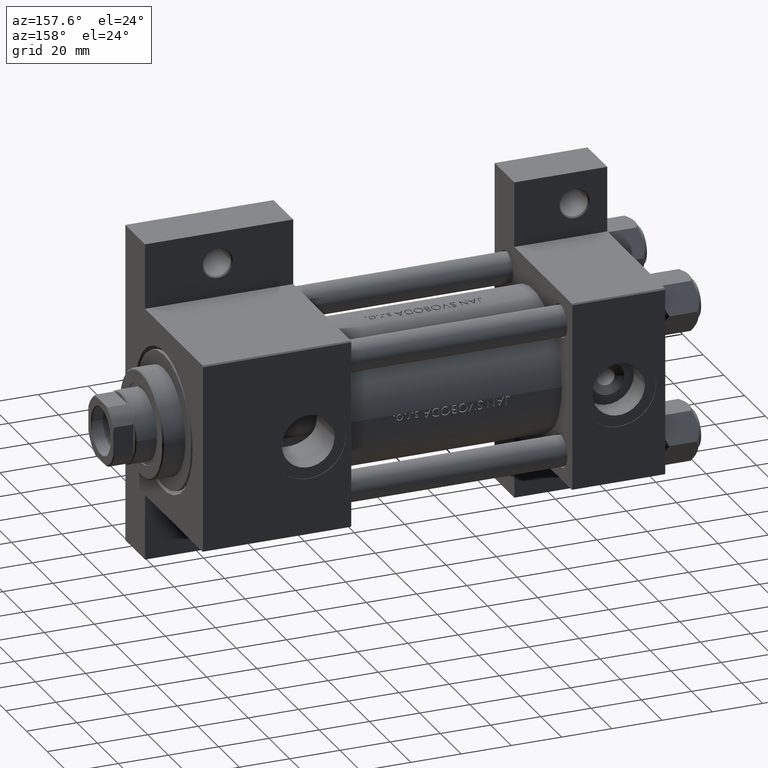
[diagram: clean part render]
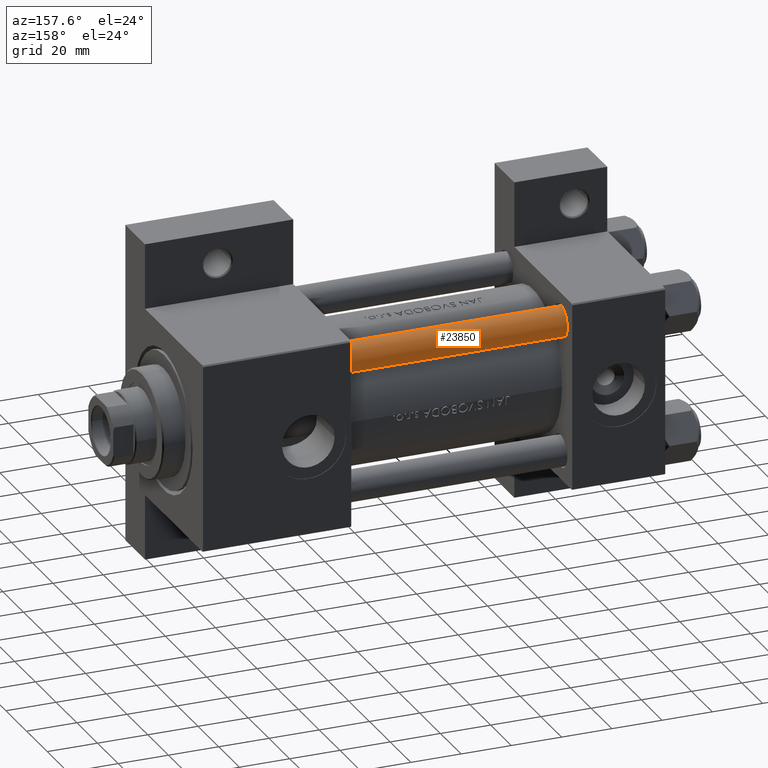
[diagram: same view with one face highlighted and labeled with its STEP entity id]
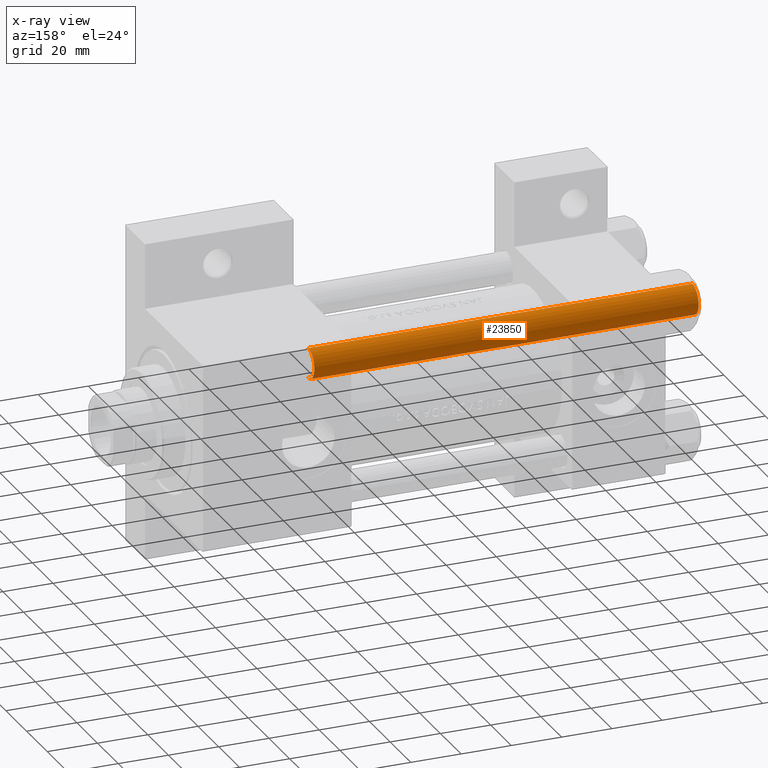
[diagram: x-ray of the same camera — body ghosted, the highlighted face saturated]
A machine part, auxiliary view. The second image highlights one B-rep face of the part: STEP entity #23850.
The next image is the same camera in x-ray: the body ghosted, the highlighted face saturated — about 0% of this face is hidden behind the body in this view.
In plain terms, the highlighted cylindrical surface (edge-blend (fillet) strip) has radius 6 mm, axis along (-1, -0, -0).
Its self-contained STEP definition (entity closure, byte-faithful):
#742 = DIRECTION ( 'NONE',  ( -0.000000000000000000, -0.000000000000000000, -1.000000000000000000 ) ) ;
#1555 = EDGE_CURVE ( 'NONE', #9213, #46717, #3780, .T. ) ;
#3780 = LINE ( 'NONE', #39612, #15267 ) ;
#4116 = AXIS2_PLACEMENT_3D ( 'NONE', #8324, #4699, #30871 ) ;
#4699 = DIRECTION ( 'NONE',  ( -0.000000000000000000, -0.000000000000000000, -1.000000000000000000 ) ) ;
#4703 = ORIENTED_EDGE ( 'NONE', *, *, #31246, .T. ) ;
#5238 = CARTESIAN_POINT ( 'NONE',  ( 6.000000000000000888, 7.347880794884120722E-16, 0.5000000000000281997 ) ) ;
#5770 = CARTESIAN_POINT ( 'NONE',  ( 0.000000000000000000, 0.000000000000000000, 0.5000000000000281997 ) ) ;
#8324 = CARTESIAN_POINT ( 'NONE',  ( 0.000000000000000000, 0.000000000000000000, 154.0000000000000000 ) ) ;
#9011 = DIRECTION ( 'NONE',  ( 1.000000000000000000, 0.000000000000000000, 0.000000000000000000 ) ) ;
#9213 = VERTEX_POINT ( 'NONE', #22668 ) ;
#11009 = DIRECTION ( 'NONE',  ( -0.000000000000000000, -0.000000000000000000, -1.000000000000000000 ) ) ;
#11848 = EDGE_LOOP ( 'NONE', ( #44997, #14243, #4703, #40935 ) ) ;
#14198 = AXIS2_PLACEMENT_3D ( 'NONE', #45067, #45530, #9011 ) ;
#14243 = ORIENTED_EDGE ( 'NONE', *, *, #24534, .T. ) ;
#14319 = CIRCLE ( 'NONE', #31939, 6.000000000000000888 ) ;
#15267 = VECTOR ( 'NONE', #11009, 1000.000000000000000 ) ;
#15303 = VERTEX_POINT ( 'NONE', #25324 ) ;
#22668 = CARTESIAN_POINT ( 'NONE',  ( -6.000000000000000888, 0.000000000000000000, 153.5000000000000000 ) ) ;
#23850 = ADVANCED_FACE ( 'NONE', ( #26817 ), #41476, .T. ) ;
#24534 = EDGE_CURVE ( 'NONE', #15303, #31498, #37272, .T. ) ;
#25324 = CARTESIAN_POINT ( 'NONE',  ( 6.000000000000000888, 7.347880794884120722E-16, 153.5000000000000000 ) ) ;
#26817 = FACE_OUTER_BOUND ( 'NONE', #11848, .T. ) ;
#27878 = DIRECTION ( 'NONE',  ( -0.000000000000000000, -0.000000000000000000, 1.000000000000000000 ) ) ;
#30307 = CIRCLE ( 'NONE', #14198, 6.000000000000000888 ) ;
#30871 = DIRECTION ( 'NONE',  ( -1.000000000000000000, 0.000000000000000000, 0.000000000000000000 ) ) ;
#31246 = EDGE_CURVE ( 'NONE', #31498, #46717, #14319, .T. ) ;
#31498 = VERTEX_POINT ( 'NONE', #5238 ) ;
#31939 = AXIS2_PLACEMENT_3D ( 'NONE', #5770, #27878, #35316 ) ;
#33421 = CARTESIAN_POINT ( 'NONE',  ( 6.000000000000000888, 7.347880794884120722E-16, 154.0000000000000000 ) ) ;
#35316 = DIRECTION ( 'NONE',  ( 1.000000000000000000, 0.000000000000000000, 0.000000000000000000 ) ) ;
#35480 = CARTESIAN_POINT ( 'NONE',  ( -6.000000000000000888, 0.000000000000000000, 0.5000000000000281997 ) ) ;
#37272 = LINE ( 'NONE', #33421, #40973 ) ;
#39612 = CARTESIAN_POINT ( 'NONE',  ( -6.000000000000000888, 0.000000000000000000, 154.0000000000000000 ) ) ;
#40935 = ORIENTED_EDGE ( 'NONE', *, *, #1555, .F. ) ;
#40973 = VECTOR ( 'NONE', #742, 1000.000000000000000 ) ;
#41476 = CYLINDRICAL_SURFACE ( 'NONE', #4116, 6.000000000000000888 ) ;
#44997 = ORIENTED_EDGE ( 'NONE', *, *, #45125, .T. ) ;
#45067 = CARTESIAN_POINT ( 'NONE',  ( 0.000000000000000000, 0.000000000000000000, 153.5000000000000000 ) ) ;
#45125 = EDGE_CURVE ( 'NONE', #9213, #15303, #30307, .T. ) ;
#45530 = DIRECTION ( 'NONE',  ( 0.000000000000000000, 0.000000000000000000, -1.000000000000000000 ) ) ;
#46717 = VERTEX_POINT ( 'NONE', #35480 ) ;